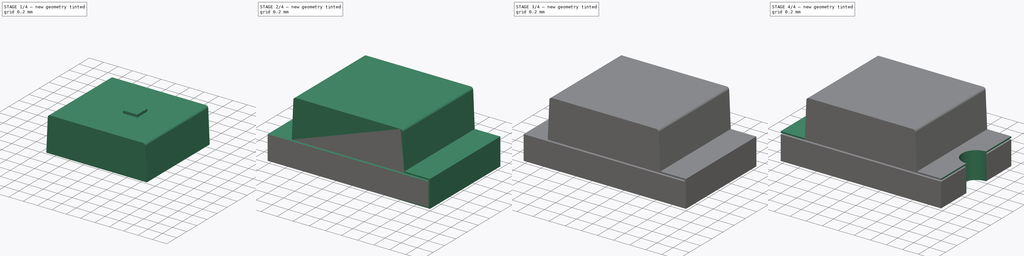
[diagram: build sequence overview — one tinted view per stage of 4, left to right]
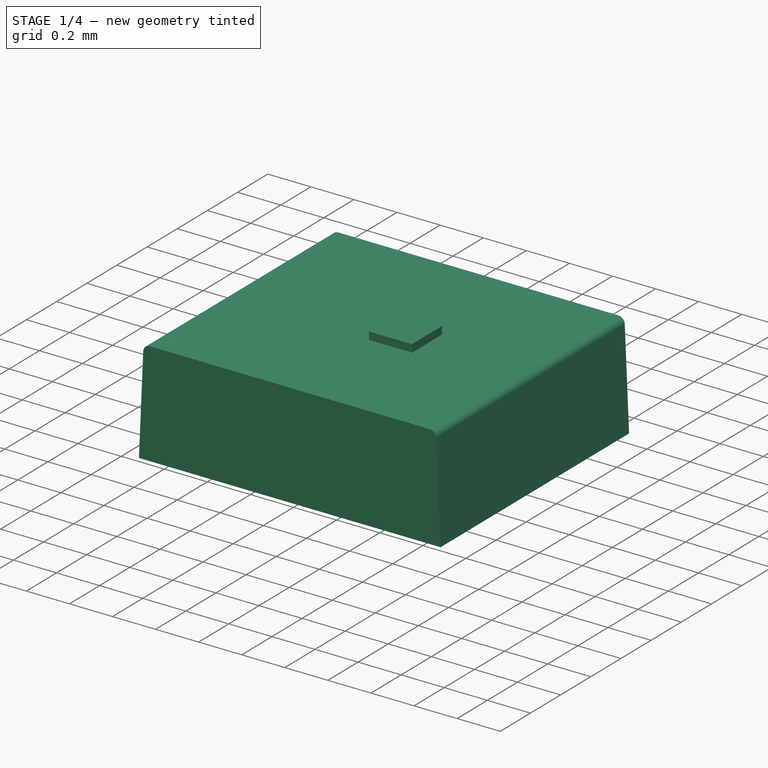
[diagram: stage 1 of 4 — iso view after this stage's code; geometry added in this stage tinted green]
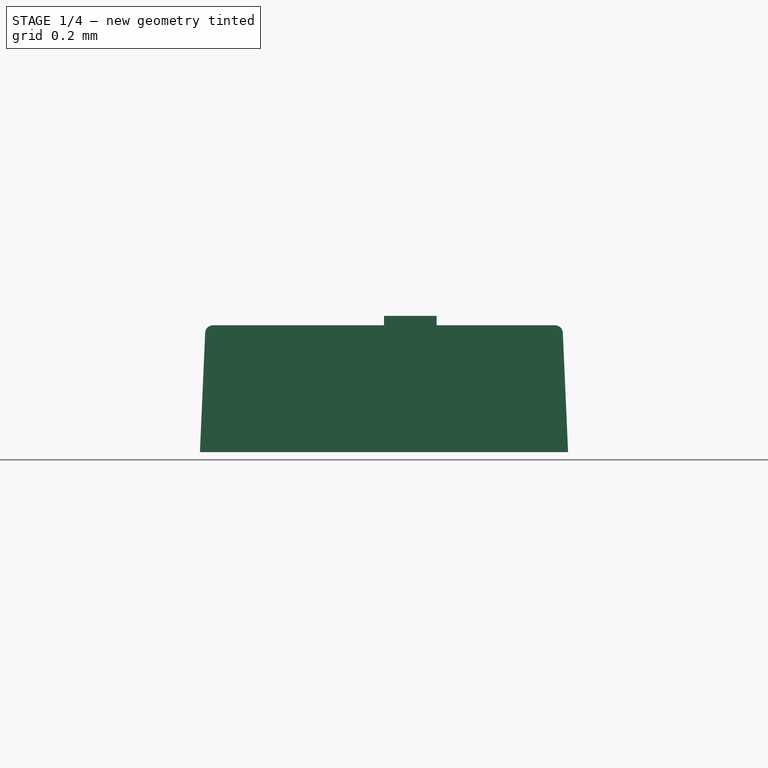
[diagram: stage 1 of 4 — front view after this stage's code; geometry added in this stage tinted green]
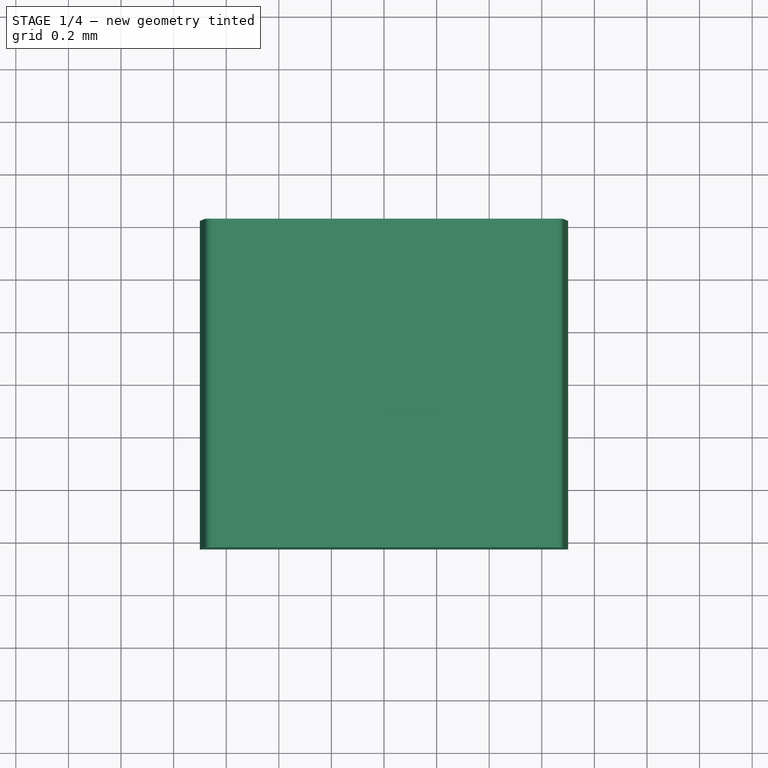
[diagram: stage 1 of 4 — top view after this stage's code; geometry added in this stage tinted green]
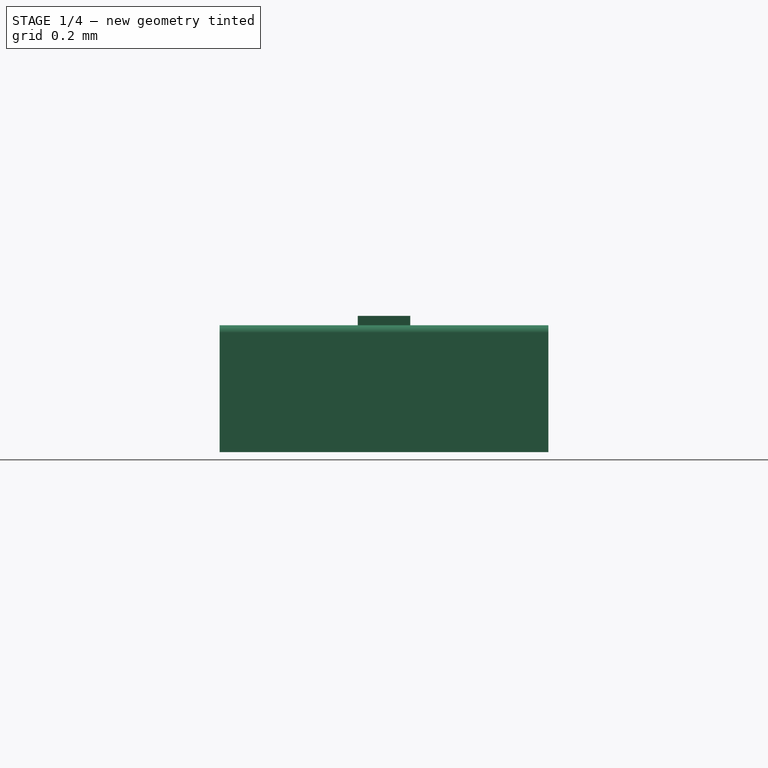
[diagram: stage 1 of 4 — right view after this stage's code; geometry added in this stage tinted green]
FCSTD DOCUMENT  (FreeCAD 1.0R38641 +468 (Git))
Label: LTST-C171xKT
License: All rights reserved
objects: Sketcher::SketchObject×7, PartDesign::Pad×5, PartDesign::Body×5, PartDesign::Pocket×2, Spreadsheet::Sheet×1, PartDesign::Mirrored×1, Part::Mirroring×1, Part::Compound×1, PartDesign::FeatureBase×1, Part::Cut×1
note: 47 computed .brp shape members not serialized (recipe doc carries the construction recipe); baked Part::Feature solids carry a one-line shape summary decoded from their .brp

FEATURE [PartDesign::Body] Body001  label="PCB"
  AllowCompound = false
  Group = -> [Sketch005,Pad002]
  Origin = -> Origin001
  Placement = pos=(0,0,0.01778) rot=(0,0,1;0rad)
  Tip = -> Pad002
  expr: .Placement.Base.z = <<Master>>.pin_t
FEATURE [Sketcher::SketchObject] Sketch006
  ArcFitTolerance = 1e-06
  AttachmentSupport = -> [XY_Plane002]
  FullyConstrained = true
  MakeInternals = false
  MapMode = 5
  sketch-geometry (4):
    g0: LineSegment StartX=0 StartY=0.1 StartZ=0 EndX=0 EndY=-0.1 EndZ=0
    g1: LineSegment StartX=0 StartY=-0.1 StartZ=0 EndX=0.2 EndY=-0.1 EndZ=0
    g2: LineSegment StartX=0.2 StartY=-0.1 StartZ=0 EndX=0.2 EndY=0.1 EndZ=0
    g3: LineSegment StartX=0.2 StartY=0.1 StartZ=0 EndX=0 EndY=0.1 EndZ=0
  constraints (11):
    c: Coincident(g0,g1)
    c: Coincident(g1,g2)
    c: Coincident(g2,g3)
    c: Coincident(g3,g0)
    c: Vertical(g2)
    c: Horizontal(g1)
    c: Horizontal(g3)
    c: PointOnObject(g0,g-2)
    c: Equal(g3,g2)
    c: Distance(g3,g3) = 0.2
    c: Symmetric(g0,g0,g-1)
FEATURE [PartDesign::Pad] Pad003
  Direction = (0,0,1)
  Length = 0.2
  Length2 = 10
  Profile = -> Sketch006
  ReferenceAxis = -> Sketch006 [N_Axis]
  Suppressed = false
  Type = 0
FEATURE [PartDesign::Body] Body002  label="LED Dice"
  AllowCompound = false
  Group = -> [Sketch006,Pad003]
  Origin = -> Origin002
  Placement = pos=(0,0,0.31778) rot=(0,0,1;0rad)
  Tip = -> Pad003
  expr: .Placement.Base.z = <<Master>>.pcb_top
FEATURE [Sketcher::SketchObject] Sketch007
  ArcFitTolerance = 1e-06
  AttachmentSupport = -> [XZ_Plane003]
  FullyConstrained = true
  MakeInternals = false
  MapMode = 5
  Placement = pos=(0,0,0) rot=(1,0,0;1.5708rad)
  expr: Constraints[5] = <<Master>>.lens_length
  expr: Constraints[6] = <<Master>>.lens_h
  sketch-geometry (6):
    g0: LineSegment StartX=-0.679971 StartY=0.453544 StartZ=0 EndX=-0.7 EndY=0 EndZ=0
    g1: LineSegment StartX=-0.7 StartY=0 StartZ=0 EndX=0.7 EndY=0 EndZ=0
    g2: LineSegment StartX=0.7 StartY=0 StartZ=0 EndX=0.679971 EndY=0.453544 EndZ=0
    g3: LineSegment StartX=-0.65 StartY=0.48222 StartZ=0 EndX=0.65 EndY=0.48222 EndZ=0
    g4: ArcOfCircle CenterX=-0.65 CenterY=0.45222 CenterZ=0 NormalX=0 NormalY=0 NormalZ=1 AngleXU=0 Radius=0.03 StartAngle=1.5708 EndAngle=3.09746
    g5: ArcOfCircle CenterX=0.65 CenterY=0.45222 CenterZ=0 NormalX=0 NormalY=0 NormalZ=1 AngleXU=0 Radius=0.03 StartAngle=0.0441329 EndAngle=1.5708
  constraints (14):
    c: Coincident(g0,g1)
    c: Coincident(g1,g2)
    c: Equal(g5,g4)
    c: Symmetric(g3,g3,g-2)
    c: Radius(g4) = 0.03
    c: DistanceX(g1,g1) = 1.4
    c: DistanceY(g1,g3) = 0.48222
    c: Symmetric(g0,g1,g-1)
    c: Horizontal(g1)
    c: Tangent(g4,g3) = 1.5708
    c: Tangent(g4,g0) = -1.5708
    c: Tangent(g5,g3) = 1.5708
    c: Tangent(g5,g2) = -1.5708
    c: DistanceX(g3,g3) = 1.3
FEATURE [PartDesign::Pad] Pad004
  Direction = (0,-1,2e-16)
  Length = 0.625
  Length2 = 0.625
  Placement = pos=(0,0,0) rot=(1,0,0;1.5708rad)
  Profile = -> Sketch007
  ReferenceAxis = -> Sketch007 [N_Axis]
  Suppressed = false
  Type = 4
  expr: Length = <<Master>>.width / 2
  expr: Length2 = <<Master>>.width / 2
FEATURE [PartDesign::Body] Body003
  AllowCompound = false
  Group = -> [Sketch007,Pad004]
  Origin = -> Origin003
  Placement = pos=(0,0,0.31778) rot=(0,0,1;0rad)
  Tip = -> Pad004
  expr: .Placement.Base.z = <<Master>>.pcb_top
FEATURE [PartDesign::FeatureBase] Clone
  BaseFeature = -> Body002
  Placement = pos=(0,0,0.31778) rot=(0,0,1;0rad)
  Suppressed = false
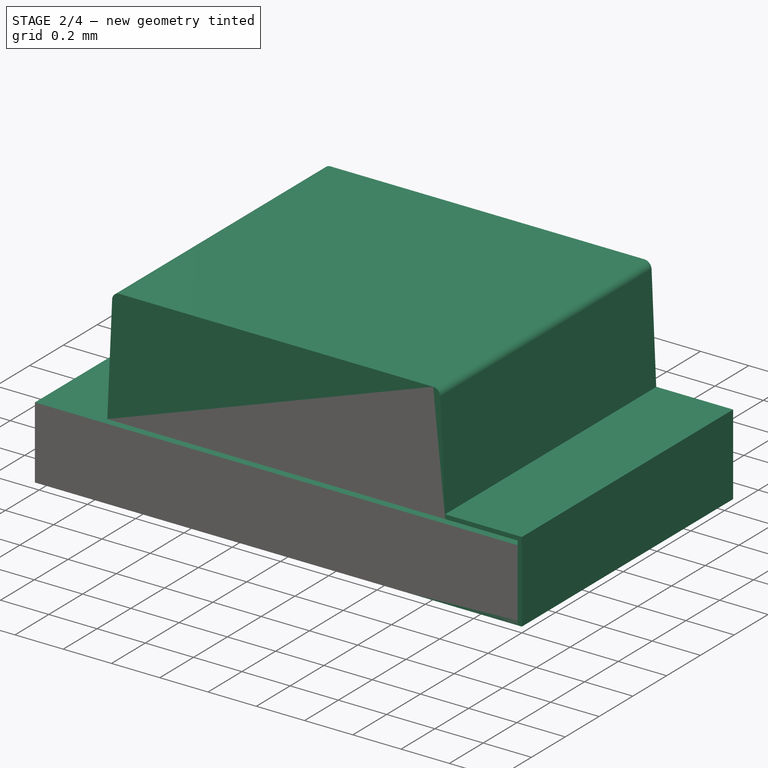
[diagram: stage 2 of 4 — iso view after this stage's code; geometry added in this stage tinted green]
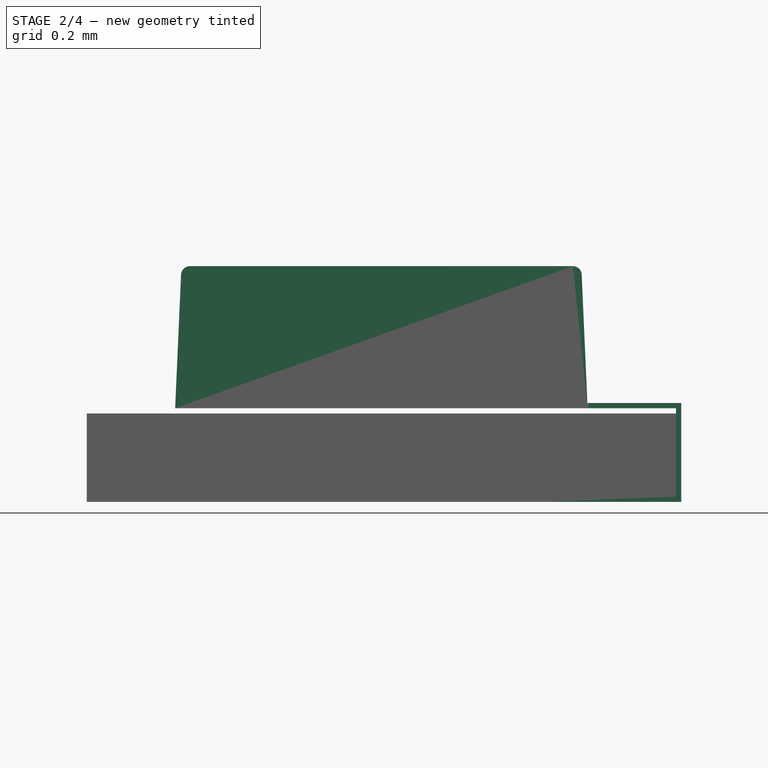
[diagram: stage 2 of 4 — front view after this stage's code; geometry added in this stage tinted green]
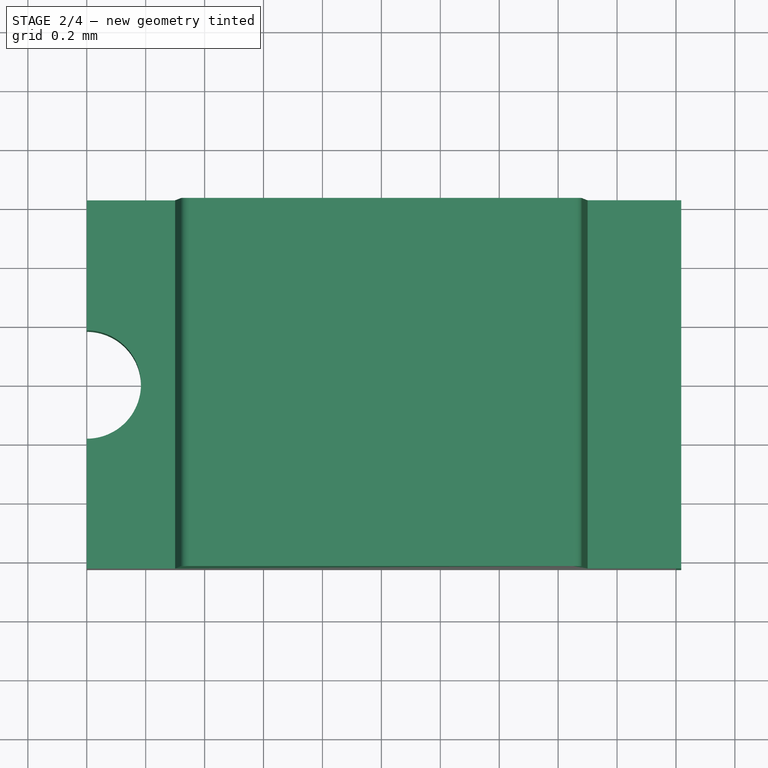
[diagram: stage 2 of 4 — top view after this stage's code; geometry added in this stage tinted green]
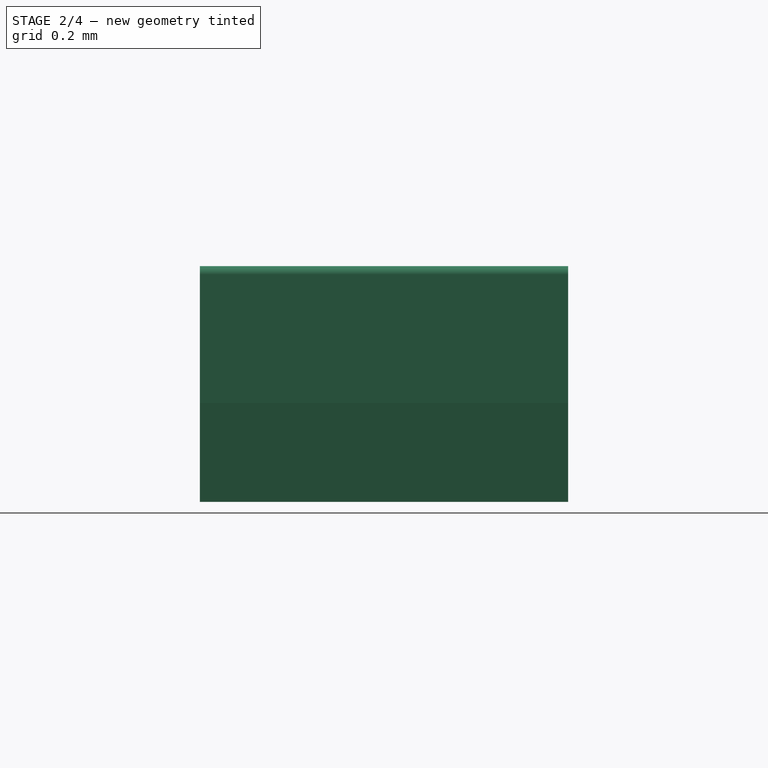
[diagram: stage 2 of 4 — right view after this stage's code; geometry added in this stage tinted green]
FEATURE [Spreadsheet::Sheet] Spreadsheet  label="Master"
  cells = A1='Constants; A2='length; B2(length)==2 mm; C2='Total length; A3='width; B3(width)==1.25 mm; C3='Width of housing; A4='height; B4(height)==0.8 mm; C4='Height of housing; A5='lens length; B5(lens_length)==1.4 mm; C5='Lens length; A7='pin thickness; B7(pin_t)==17.78 um; C7='Pin thickness; A8='pin diameter; B8(pin_dia)==0.35 mm; C8='Pin hole diameter; A10='pcb thickness; B10(pcb_t)==0.3 mm; C10='PCB thickness; A12='Calculated; A13='pin drill; B13(pin_drill)==pin_dia + pin_t; C13='Pin drill diameter; A14='pcb top; B14(pcb_top)==pin_t + pcb_t; C14='Top of PCB; A15='lens height; B15(lens_h)==height - pcb_t - pin_t; C15='Lens height
FEATURE [Sketcher::SketchObject] Sketch
  ArcFitTolerance = 0
  AttachmentSupport = -> [XZ_Plane]
  FullyConstrained = true
  MakeInternals = false
  MapMode = 5
  Placement = pos=(0,0,0) rot=(1,0,0;1.5708rad)
  expr: Constraints[22] = <<Master>>.length / 2
  expr: Constraints[23] = <<Master>>.pin_t
  expr: Constraints[24] = <<Master>>.pcb_t
  expr: Constraints[26] = (<<Master>>.length - <<Master>>.lens_length) / 2
  sketch-geometry (9):
    g0: LineSegment StartX=0.55 StartY=0 StartZ=0 EndX=1.01778 EndY=0 EndZ=0
    g1: LineSegment StartX=1.01778 StartY=0 StartZ=0 EndX=1.01778 EndY=0.33556 EndZ=0
    g2: LineSegment StartX=1.01778 StartY=0.33556 StartZ=0 EndX=0.7 EndY=0.33556 EndZ=0
    g3: LineSegment StartX=0.7 StartY=0.33556 StartZ=0 EndX=0.7 EndY=0.31778 EndZ=0
    g4: LineSegment StartX=0.7 StartY=0.31778 StartZ=0 EndX=1 EndY=0.31778 EndZ=0
    g5: LineSegment StartX=1 StartY=0.31778 StartZ=0 EndX=1 EndY=0.01778 EndZ=0
    g6: LineSegment StartX=1 StartY=0.01778 StartZ=0 EndX=0.55 EndY=0.01778 EndZ=0
    g7: LineSegment StartX=0.55 StartY=0.01778 StartZ=0 EndX=0.55 EndY=0 EndZ=0
    g8: LineSegment [constr] StartX=1 StartY=0.31778 StartZ=0 EndX=1.01778 EndY=0.31778 EndZ=0
  constraints (27):
    c: Horizontal(g0)
    c: Coincident(g0,g1)
    c: Vertical(g1)
    c: Coincident(g1,g2)
    c: Horizontal(g2)
    c: Coincident(g2,g3)
    c: Coincident(g3,g4)
    c: Coincident(g4,g5)
    c: Vertical(g5)
    c: Coincident(g5,g6)
    c: Horizontal(g6)
    c: Coincident(g6,g7)
    c: Coincident(g7,g0)
    c: Vertical(g7)
    c: Horizontal(g4)
    c: Vertical(g3)
    c: Equal(g3,g7)
    c: Coincident(g8,g4)
    c: PointOnObject(g8,g1)
    c: Horizontal(g8)
    c: Equal(g8,g3)
    c: PointOnObject(g0,g-1)
    c: DistanceX(g-1,g5) = 1
    c: DistanceY(g3,g3) = 0.01778
    c: DistanceY(g6,g3) = 0.3
    c: DistanceX(g0,g5) = 0.45
    c: DistanceX(g2,g4) = 0.3
FEATURE [PartDesign::Pad] Pad
  Direction = (0,-1,2e-16)
  Length = 0.625
  Length2 = 0.625
  Placement = pos=(0,0,0) rot=(1,0,0;1.5708rad)
  Profile = -> Sketch
  ReferenceAxis = -> Sketch [N_Axis]
  Suppressed = false
  Type = 4
  expr: Length = <<Master>>.width / 2
  expr: Length2 = <<Master>>.width / 2
FEATURE [Sketcher::SketchObject] Sketch005
  ArcFitTolerance = 1e-06
  AttachmentSupport = -> [XY_Plane001]
  FullyConstrained = true
  MakeInternals = false
  MapMode = 5
  expr: Constraints[21] = <<Master>>.length
  expr: Constraints[22] = <<Master>>.width
  expr: Constraints[28] = <<Master>>.pin_drill
  sketch-geometry (10):
    g0: LineSegment StartX=-1 StartY=0.625 StartZ=0 EndX=-1 EndY=0.18389 EndZ=0
    g1: LineSegment StartX=-1 StartY=-0.625 StartZ=0 EndX=1 EndY=-0.625 EndZ=0
    g2: LineSegment StartX=1 StartY=-0.625 StartZ=0 EndX=1 EndY=-0.18389 EndZ=0
    g3: LineSegment StartX=1 StartY=0.625 StartZ=0 EndX=-1 EndY=0.625 EndZ=0
    g4: ArcOfCircle CenterX=1 CenterY=0 CenterZ=0 NormalX=0 NormalY=0 NormalZ=1 AngleXU=0 Radius=0.18389 StartAngle=1.5708 EndAngle=4.71239
    g5: ArcOfCircle CenterX=-1 CenterY=0 CenterZ=0 NormalX=0 NormalY=0 NormalZ=1 AngleXU=0 Radius=0.18389 StartAngle=4.71239 EndAngle=7.85398
    g6: LineSegment StartX=-1 StartY=-0.18389 StartZ=0 EndX=-1 EndY=-0.625 EndZ=0
    g7: LineSegment StartX=1 StartY=0.18389 StartZ=0 EndX=1 EndY=0.625 EndZ=0
    g8: LineSegment [constr] StartX=-1 StartY=0.18389 StartZ=0 EndX=-1 EndY=-0.18389 EndZ=0
    g9: LineSegment [constr] StartX=1 StartY=0.18389 StartZ=0 EndX=1 EndY=-0.18389 EndZ=0
  constraints (29):
    c: Coincident(g6,g1)
    c: Coincident(g1,g2)
    c: Coincident(g7,g3)
    c: Coincident(g3,g0)
    c: Vertical(g0)
    c: Vertical(g2)
    c: Horizontal(g1)
    c: Horizontal(g3)
    c: Coincident(g0,g5)
    c: Coincident(g2,g4)
    c: Coincident(g7,g4)
    c: Coincident(g6,g5)
    c: Symmetric(g1,g3,g-1)
    c: Coincident(g8,g0)
    c: Coincident(g8,g5)
    c: Vertical(g8)
    c: Coincident(g9,g4)
    c: Coincident(g9,g2)
    c: Vertical(g9)
    c: Vertical(g7)
    c: Vertical(g6)
    c: DistanceX(g3,g3) = 2
    c: DistanceY(g1,g3) = 1.25
    c: Equal(g5,g4)
    c: Equal(g0,g6)
    c: Equal(g7,g2)
    c: PointOnObject(g5,g8)
    c: PointOnObject(g4,g9)
    c: Diameter(g4) = 0.36778
FEATURE [PartDesign::Pad] Pad002
  Direction = (0,0,1)
  Length = 0.3
  Length2 = 10
  Profile = -> Sketch005
  ReferenceAxis = -> Sketch005 [N_Axis]
  Suppressed = false
  Type = 0
  expr: Length = <<Master>>.pcb_t
FEATURE [PartDesign::Body] Body004
  AllowCompound = false
  Group = -> [Clone]
  Origin = -> Origin004
  Tip = -> Clone
FEATURE [Part::Cut] Cut  label="Lens"
  Base = -> Body003
  Tool = -> Body004
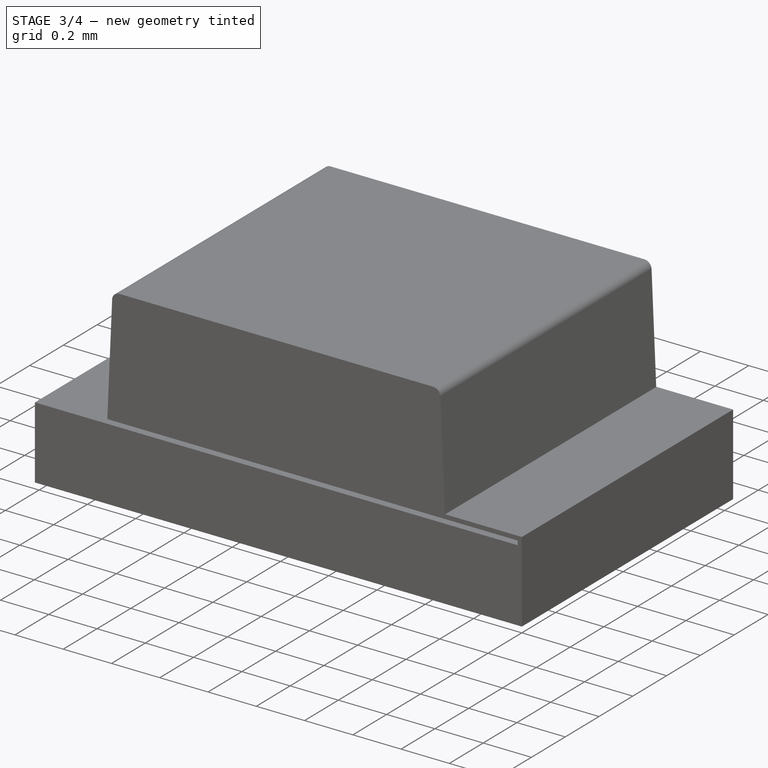
[diagram: stage 3 of 4 — iso view after this stage's code; geometry added in this stage tinted green]
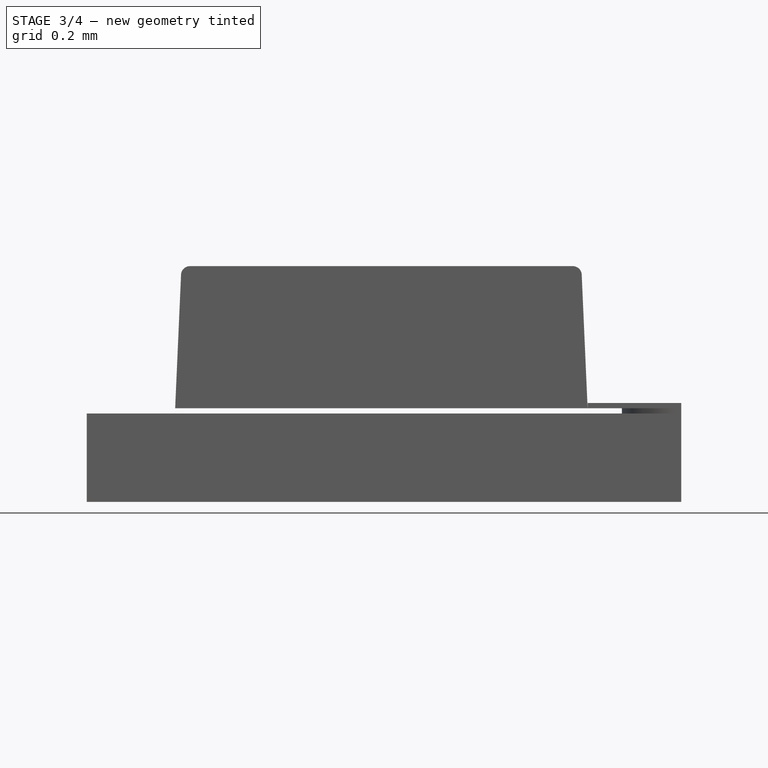
[diagram: stage 3 of 4 — front view after this stage's code; geometry added in this stage tinted green]
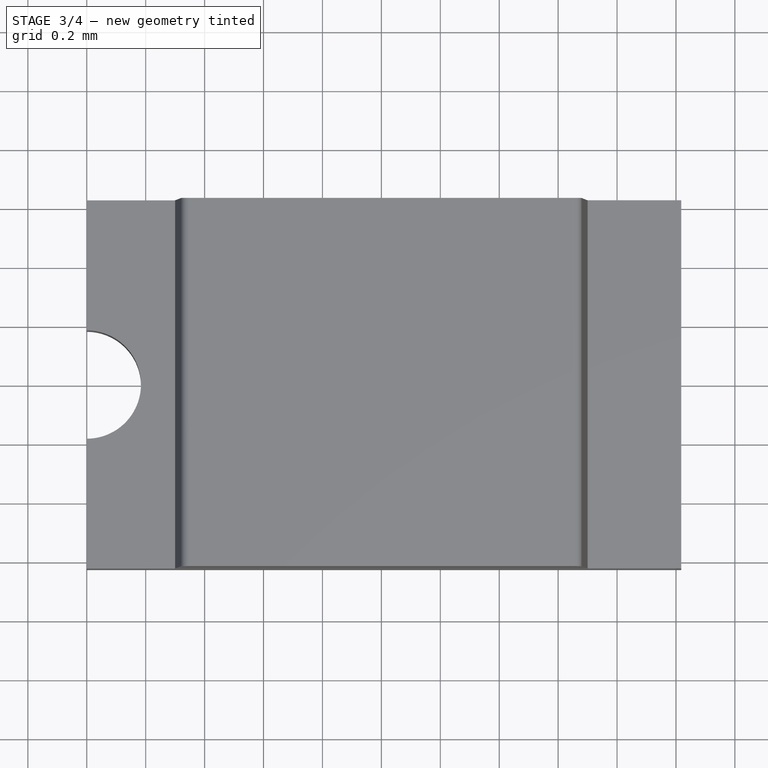
[diagram: stage 3 of 4 — top view after this stage's code; geometry added in this stage tinted green]
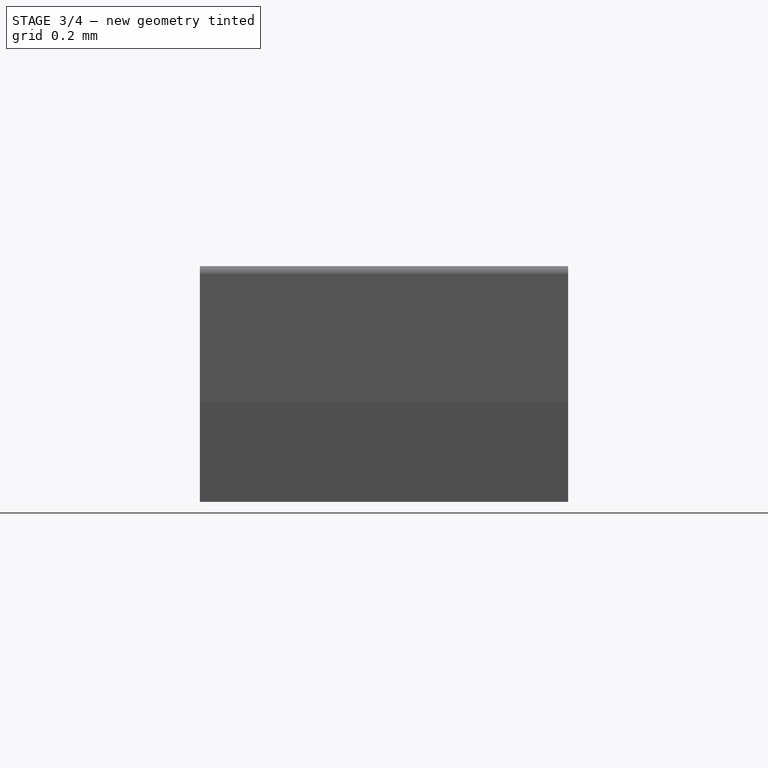
[diagram: stage 3 of 4 — right view after this stage's code; geometry added in this stage tinted green]
FEATURE [Sketcher::SketchObject] Sketch001
  ArcFitTolerance = 0
  AttachmentSupport = -> [XY_Plane]
  FullyConstrained = true
  MakeInternals = false
  MapMode = 5
  expr: Constraints[5] = <<Master>>.pin_drill
  expr: Constraints[6] = <<Master>>.length / 2
  sketch-geometry (2):
    g0: LineSegment StartX=1 StartY=0.18389 StartZ=0 EndX=1 EndY=-0.18389 EndZ=0
    g1: ArcOfCircle CenterX=1 CenterY=0 CenterZ=0 NormalX=0 NormalY=0 NormalZ=1 AngleXU=0 Radius=0.18389 StartAngle=1.5708 EndAngle=4.71239
  constraints (7):
    c: Vertical(g0)
    c: Coincident(g1,g0)
    c: Coincident(g1,g0)
    c: PointOnObject(g1,g0)
    c: PointOnObject(g1,g-1)
    c: Diameter(g1) = 0.36778
    c: DistanceX(g-1,g0) = 1
FEATURE [PartDesign::Pad] Pad001
  BaseFeature = -> Pad
  Direction = (0,0,1)
  Length = 0.31778
  Length2 = 10
  Placement = pos=(0,0,0) rot=(1,0,0;1.5708rad)
  Profile = -> Sketch001
  ReferenceAxis = -> Sketch001 [N_Axis]
  Suppressed = false
  Type = 0
  expr: Length = <<Master>>.pcb_t + <<Master>>.pin_t
FEATURE [Sketcher::SketchObject] Sketch003
  ArcFitTolerance = 0
  AttachmentSupport = -> [XY_Plane]
  FullyConstrained = true
  MakeInternals = false
  MapMode = 5
  expr: Constraints[15] = <<Master>>.length / 2
  expr: Constraints[16] = <<Master>>.width / 2
  sketch-geometry (6):
    g0: LineSegment StartX=0.55 StartY=0.625 StartZ=0 EndX=1 EndY=0.625 EndZ=0
    g1: LineSegment StartX=1 StartY=0.625 StartZ=0 EndX=1 EndY=0.325 EndZ=0
    g2: LineSegment StartX=1 StartY=0.325 StartZ=0 EndX=0.9 EndY=0.325 EndZ=0
    g3: LineSegment StartX=0.9 StartY=0.325 StartZ=0 EndX=0.9 EndY=0.525 EndZ=0
    g4: LineSegment StartX=0.9 StartY=0.525 StartZ=0 EndX=0.55 EndY=0.525 EndZ=0
    g5: LineSegment StartX=0.55 StartY=0.525 StartZ=0 EndX=0.55 EndY=0.625 EndZ=0
  constraints (18):
    c: Coincident(g0,g1)
    c: Vertical(g1)
    c: Coincident(g1,g2)
    c: Coincident(g2,g3)
    c: Coincident(g3,g4)
    c: Horizontal(g4)
    c: Coincident(g4,g5)
    c: Coincident(g5,g0)
    c: Vertical(g5)
    c: Vertical(g3)
    c: Horizontal(g2)
    c: Equal(g5,g2)
    c: DistanceY(g5) = 0.1
    c: DistanceX(g0,g0) = 0.45
    c: DistanceY(g1,g1) = 0.3
    c: DistanceX(g-1,g1) = 1
    c: DistanceY(g-1,g0) = 0.625
    c: Horizontal(g0)
FEATURE [Sketcher::SketchObject] Sketch004
  ArcFitTolerance = 1e-06
  AttachmentSupport = -> [XY_Plane]
  FullyConstrained = true
  MakeInternals = false
  MapMode = 5
  expr: Constraints[17] = <<Master>>.length / 2
  expr: Constraints[18] = <<Master>>.width
  expr: Constraints[19] = <<Master>>.pin_t
  expr: Constraints[20] = <<Master>>.pin_dia
  sketch-geometry (7):
    g0: LineSegment StartX=1 StartY=0.175 StartZ=0 EndX=1 EndY=0.625 EndZ=0
    g1: LineSegment StartX=1 StartY=0.625 StartZ=0 EndX=1.01778 EndY=0.625 EndZ=0
    g2: LineSegment StartX=1.01778 StartY=0.625 StartZ=0 EndX=1.01778 EndY=-0.625 EndZ=0
    g3: LineSegment StartX=1.01778 StartY=-0.625 StartZ=0 EndX=1 EndY=-0.625 EndZ=0
    g4: LineSegment StartX=1 StartY=-0.625 StartZ=0 EndX=1 EndY=-0.175 EndZ=0
    g5: ArcOfCircle CenterX=1 CenterY=0 CenterZ=0 NormalX=0 NormalY=0 NormalZ=1 AngleXU=0 Radius=0.175 StartAngle=1.5708 EndAngle=4.71239
    g6: LineSegment [constr] StartX=1 StartY=0.175 StartZ=0 EndX=1 EndY=-0.175 EndZ=0
  constraints (21):
    c: Vertical(g0)
    c: Coincident(g0,g1)
    c: Horizontal(g1)
    c: Coincident(g1,g2)
    c: Vertical(g2)
    c: Coincident(g2,g3)
    c: Coincident(g3,g4)
    c: Vertical(g4)
    c: Horizontal(g3)
    c: Coincident(g5,g4)
    c: Coincident(g5,g0)
    c: Coincident(g6,g0)
    c: Coincident(g6,g4)
    c: Vertical(g6)
    c: PointOnObject(g5,g6)
    c: Equal(g0,g4)
    c: PointOnObject(g5,g-1)
    c: DistanceX(g-1,g3) = 1
    c: DistanceY(g2,g2) = 1.25
    c: DistanceX(g1,g1) = 0.01778
    c: Diameter(g5) = 0.35
FEATURE [PartDesign::Pocket] Pocket
  BaseFeature = -> Pad001
  Direction = (0,0,-1)
  Length = 0.01778
  Length2 = 5
  Placement = pos=(0,0,0) rot=(1,0,0;1.5708rad)
  Profile = -> Sketch003
  ReferenceAxis = -> Sketch003 [N_Axis]
  Reversed = true
  Suppressed = false
  Type = 0
  expr: Length = <<Master>>.pin_t
FEATURE [PartDesign::Mirrored] Mirrored
  BaseFeature = -> Pocket
  MirrorPlane = -> Sketch003 [H_Axis]
  Originals = -> [Pocket]
  Placement = pos=(0,0,0) rot=(1,0,0;1.5708rad)
  Suppressed = false
  TransformMode = 0
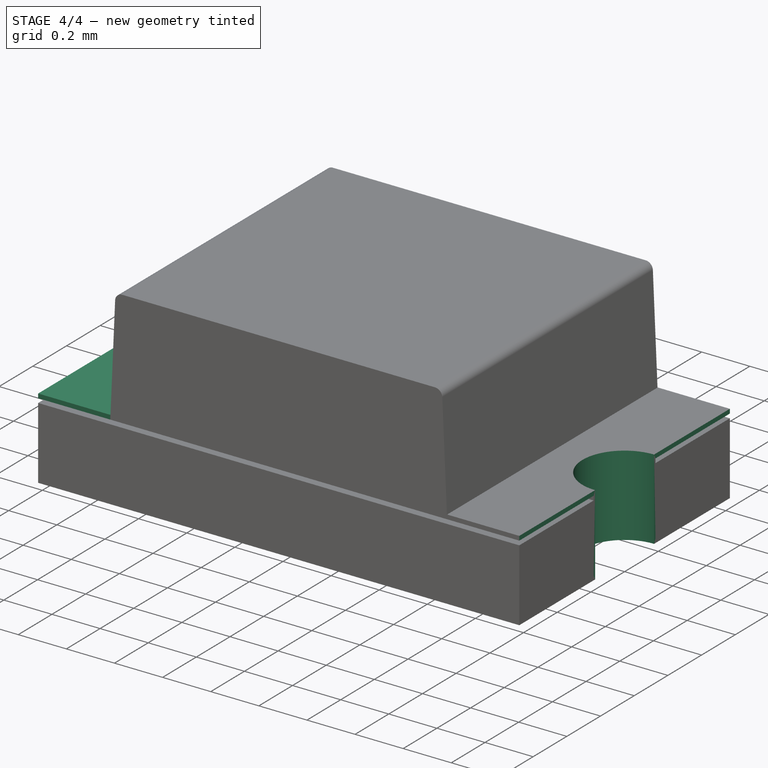
[diagram: stage 4 of 4 — iso view after this stage's code; geometry added in this stage tinted green]
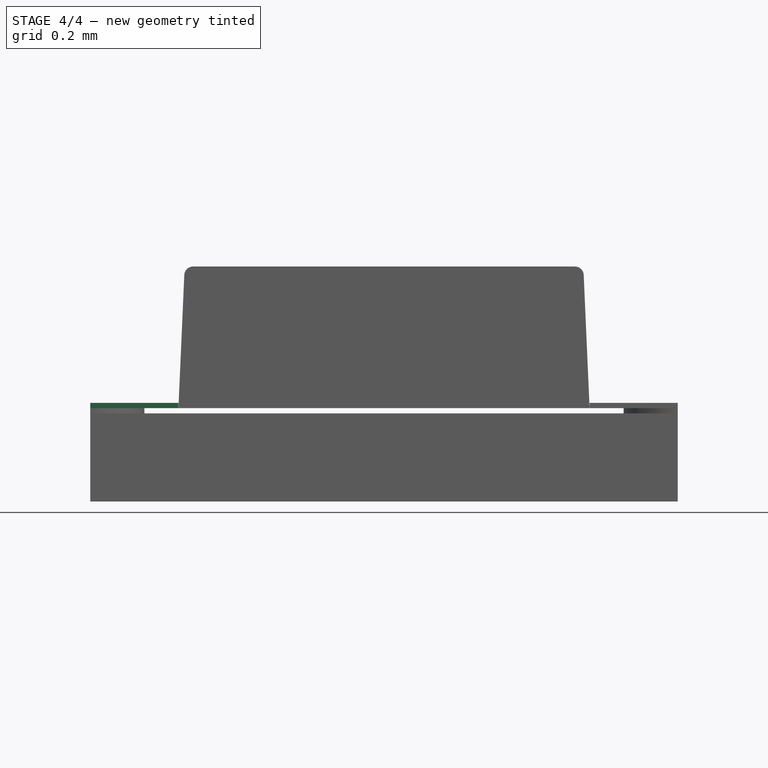
[diagram: stage 4 of 4 — front view after this stage's code; geometry added in this stage tinted green]
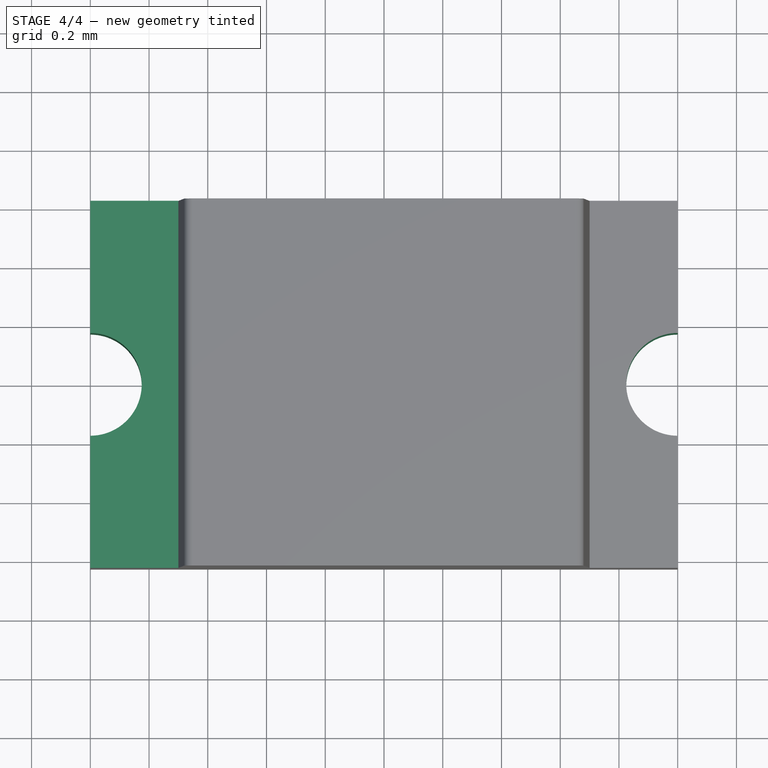
[diagram: stage 4 of 4 — top view after this stage's code; geometry added in this stage tinted green]
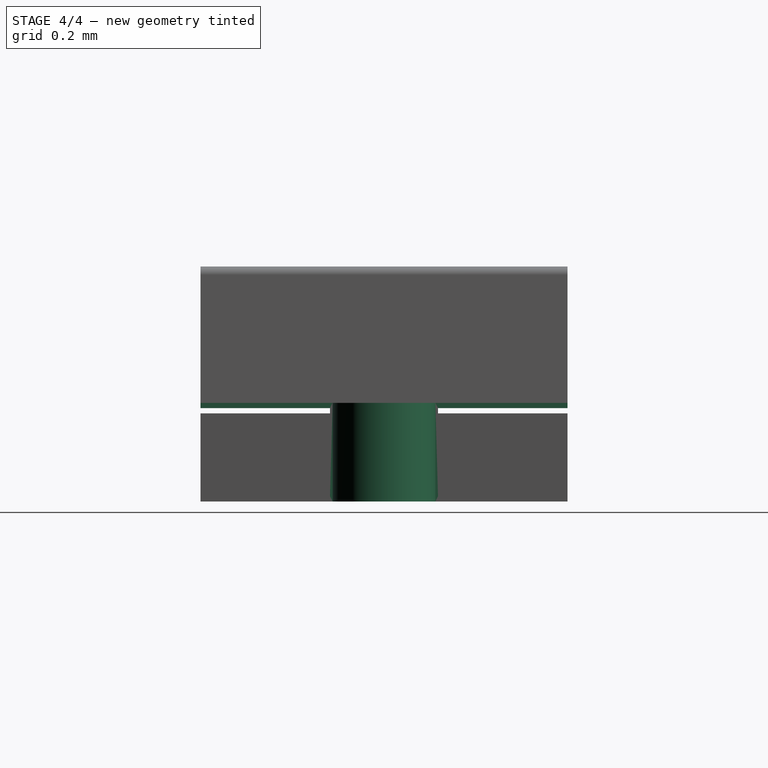
[diagram: stage 4 of 4 — right view after this stage's code; geometry added in this stage tinted green]
FEATURE [PartDesign::Pocket] Pocket001
  BaseFeature = -> Mirrored
  Direction = (0,0,-1)
  Length = 5
  Length2 = 5
  Midplane = true
  Placement = pos=(0,0,0) rot=(1,0,0;1.5708rad)
  Profile = -> Sketch004
  ReferenceAxis = -> Sketch004 [N_Axis]
  Refine = true
  Suppressed = false
  Type = 1
FEATURE [PartDesign::Body] Body
  AllowCompound = false
  Group = -> [Sketch,Pad,Sketch001,Pad001,Sketch003,Sketch004,Pocket,Mirrored,Pocket001]
  Origin = -> Origin
  Tip = -> Pocket001
FEATURE [Part::Mirroring] Part__Mirroring  label="Body (Mirror #1)"
  Base = (0,0,0)
  Normal = (1,0,0)
  Source = -> Body
FEATURE [Part::Compound] Compound  label="Pins"
  Links = -> [Part__Mirroring,Body]
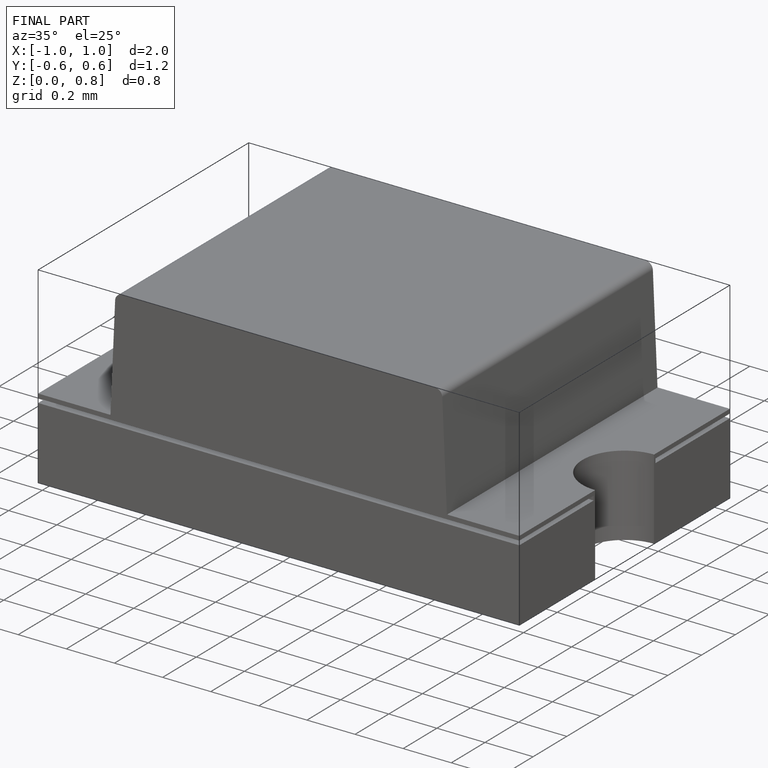
[diagram: finished part — iso view with bounding-box wireframe]
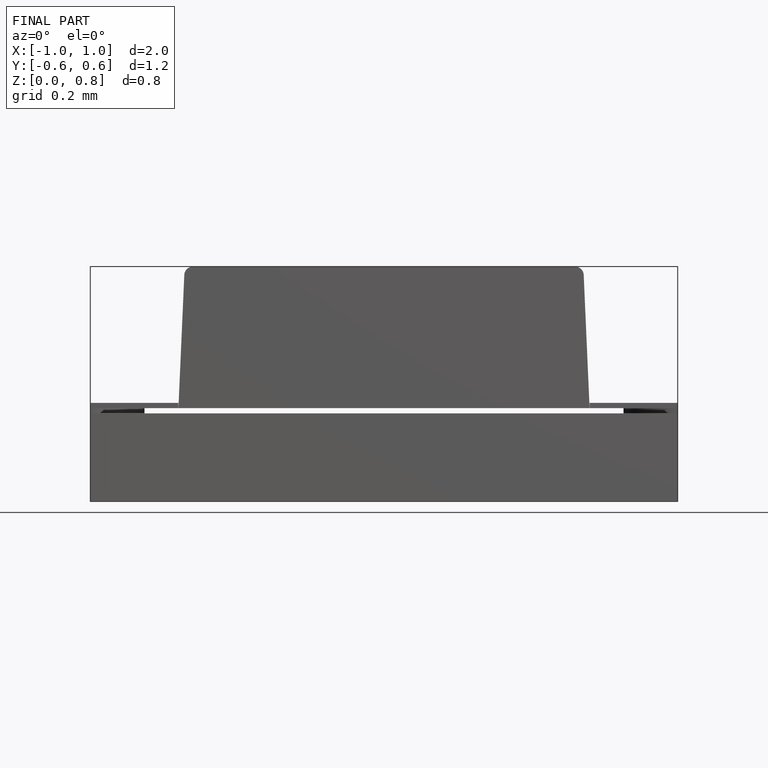
[diagram: finished part — front view with bounding-box wireframe]
